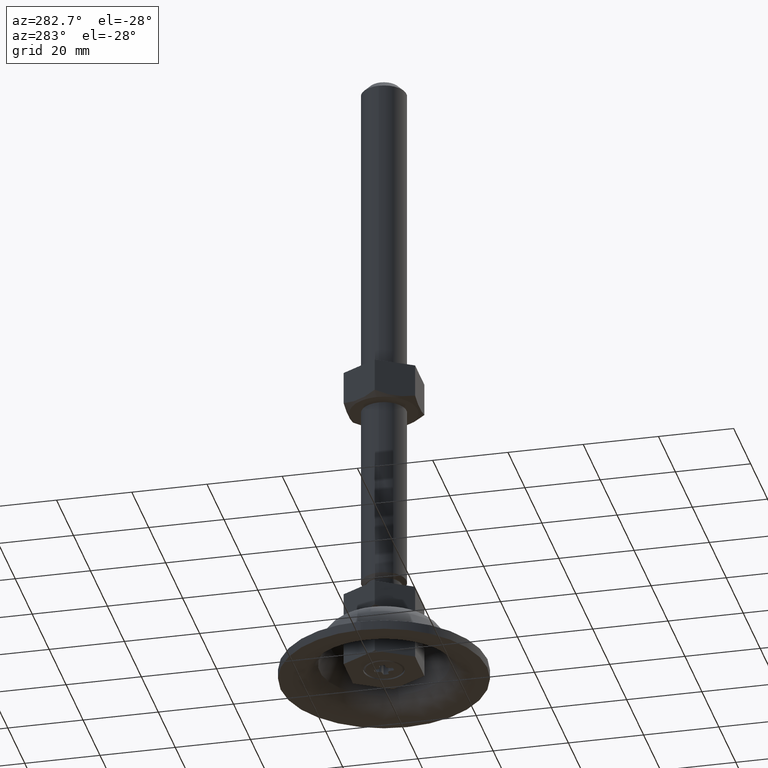
[diagram: clean part render]
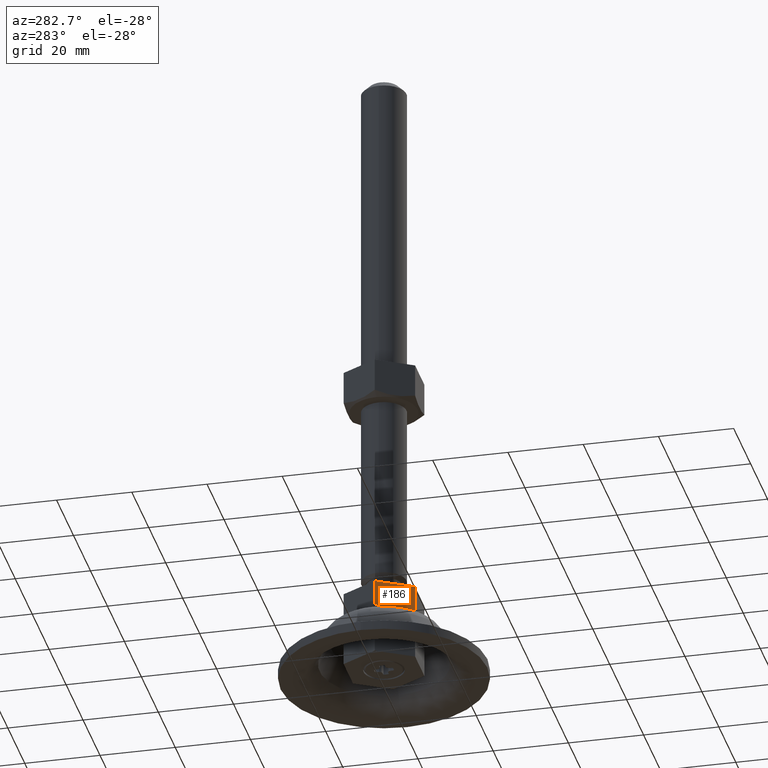
[diagram: same view with one face highlighted and labeled with its STEP entity id]
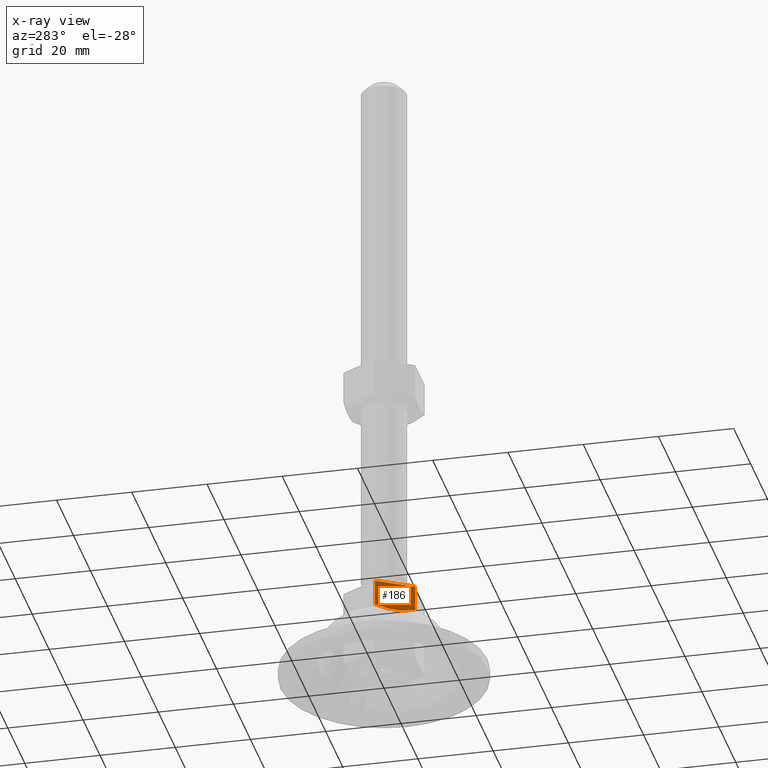
[diagram: x-ray of the same camera — body ghosted, the highlighted face saturated]
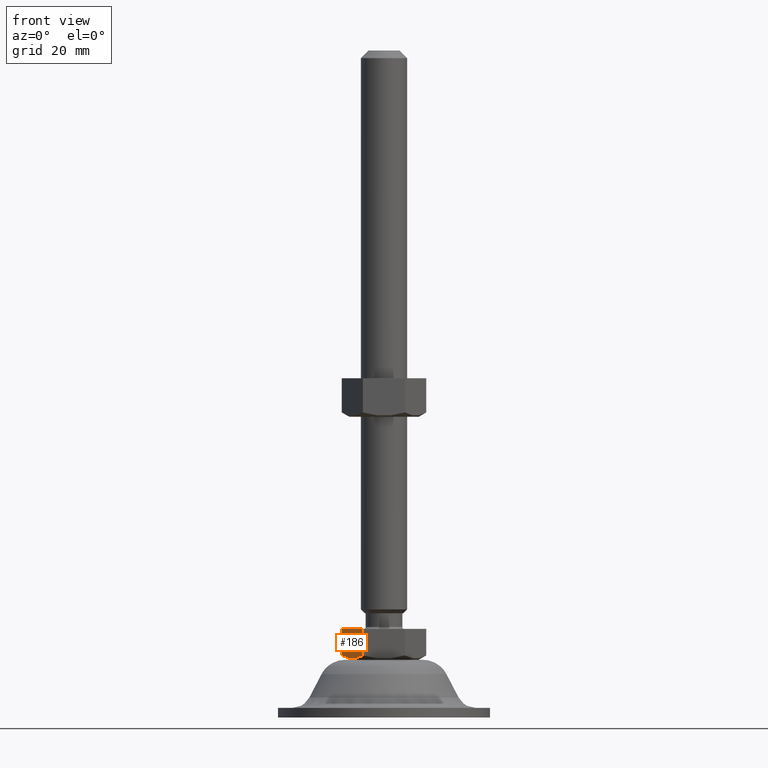
[diagram: same view with one face highlighted and labeled with its STEP entity id]
A machine part, auxiliary view. The second image highlights one B-rep face of the part: STEP entity #186.
The next image is the same camera in x-ray: the body ghosted, the highlighted face saturated — about 0% of this face is hidden behind the body in this view.
A second angle (front view) of the same face is appended — the face is thin or edge-on in the first view.
In plain terms, the highlighted planar face has unit normal (0.866, 0.5, 0).
Its self-contained STEP definition (entity closure, byte-faithful):
#186=ADVANCED_FACE('',(#622),#621,.F.);
#621=PLANE('',#1411);
#622=FACE_OUTER_BOUND('',#1412,.T.);
#1408=CARTESIAN_POINT('',(-4.93634480157E+00,-1.04500000000E+01,-8.48278119672E+00));
#1409=DIRECTION('',(8.66025403784E-01,5.00000000000E-01,0.00000000000E+00));
#1410=DIRECTION('',(-5.00000000000E-01,8.66025403784E-01,0.00000000000E+00));
#1411=AXIS2_PLACEMENT_3D('',#1408,#1409,#1410);
#1412=EDGE_LOOP('',(#2257,#2258,#2259,#2260));
#2257=ORIENTED_EDGE('',*,*,#2621,.F.);
#2258=ORIENTED_EDGE('',*,*,#2622,.T.);
#2259=ORIENTED_EDGE('',*,*,#2618,.T.);
#2260=ORIENTED_EDGE('',*,*,#2517,.T.);
#2517=EDGE_CURVE('',#2784,#2777,#2785,.T.);
#2618=EDGE_CURVE('',#3464,#2784,#3465,.T.);
#2621=EDGE_CURVE('',#3484,#2777,#3485,.T.);
#2622=EDGE_CURVE('',#3484,#3464,#3491,.T.);
#2777=VERTEX_POINT('',#4232);
#2784=VERTEX_POINT('',#4236);
#2785=LINE('',#4237,#4238);
#3464=VERTEX_POINT('',#4695);
#3465=LINE('',#4696,#4697);
#3484=VERTEX_POINT('',#4715);
#3485=LINE('',#4716,#4717);
#3491=(BOUNDED_CURVE() B_SPLINE_CURVE(3,(#4719,#4720,#4721,#4722,#4723,#4724,#4725,#4726,#4727,#4728,#4729,#4730),.UNSPECIFIED.,.F.,.F.) B_SPLINE_CURVE_WITH_KNOTS((4,2,2,2,2,4),(2.38073066898E-07,2.76992422320E-03,5.53961037333E-03,6.92445344839E-03,8.30929652346E-03,1.10789826736E-02),.UNSPECIFIED.) CURVE() GEOMETRIC_REPRESENTATION_ITEM() RATIONAL_B_SPLINE_CURVE((1.00000000000E+00,1.00000000000E+00,1.00000000000E+00,1.00000000000E+00,1.00000000000E+00,1.00000000000E+00,1.00000000000E+00,1.00000000000E+00,1.00000000000E+00,1.00000000000E+00,1.00000000000E+00,1.00000000000E+00)) REPRESENTATION_ITEM('') );
#4232=CARTESIAN_POINT('',(-1.09696551146E+01,5.68434188608E-14,-3.65685370873E-07));
#4236=CARTESIAN_POINT('',(-5.48482755730E+00,-9.50000000000E+00,-3.65685370873E-07));
#4237=CARTESIAN_POINT('',(-5.48482755730E+00,-9.50000000000E+00,-3.65685370873E-07));
#4238=VECTOR('',#4239,1.09696551146E+01);
#4239=DIRECTION('',(-5.00000000000E-01,8.66025403784E-01,0.00000000000E+00));
#4695=CARTESIAN_POINT('',(-5.48482755730E+00,-9.50000000000E+00,-6.86281997044E+00));
#4696=CARTESIAN_POINT('',(-5.48482755730E+00,-9.50000000000E+00,-6.86281997044E+00));
#4697=VECTOR('',#4698,6.86281960476E+00);
#4698=DIRECTION('',(0.00000000000E+00,0.00000000000E+00,1.00000000000E+00));
#4715=CARTESIAN_POINT('',(-1.09696551146E+01,5.68434188608E-14,-6.86281997045E+00));
#4716=CARTESIAN_POINT('',(-1.09696551146E+01,5.68434188608E-14,-6.86281997045E+00));
#4717=VECTOR('',#4718,6.86281960476E+00);
#4718=DIRECTION('',(0.00000000000E+00,0.00000000000E+00,1.00000000000E+00));
#4719=CARTESIAN_POINT('',(-1.09696551146E+01,1.01749990780E-13,-6.86281997045E+00));
#4720=CARTESIAN_POINT('',(-1.05218710035E+01,-7.75584831292E-01,-7.12134820774E+00));
#4721=CARTESIAN_POINT('',(-1.00708221796E+01,-1.55682431095E+00,-7.33442232213E+00));
#4722=CARTESIAN_POINT('',(-9.15931759723E+00,-3.13559655893E+00,-7.62959916283E+00));
#4723=CARTESIAN_POINT('',(-8.69879190613E+00,-3.93325045411E+00,-7.71072822740E+00));
#4724=CARTESIAN_POINT('',(-7.99932680712E+00,-5.14475954372E+00,-7.71161930299E+00));
#4725=CARTESIAN_POINT('',(-7.76507467708E+00,-5.55049613473E+00,-7.69178638946E+00));
#4726=CARTESIAN_POINT('',(-7.30169925877E+00,-6.35308590223E+00,-7.61444850127E+00));
#4727=CARTESIAN_POINT('',(-7.07156507453E+00,-6.75169000189E+00,-7.55702201321E+00));
#4728=CARTESIAN_POINT('',(-6.38525974474E+00,-7.94040570258E+00,-7.33527193007E+00));
#4729=CARTESIAN_POINT('',(-5.93316985731E+00,-8.72344835720E+00,-7.12167047819E+00));
#4730=CARTESIAN_POINT('',(-5.48482755730E+00,-9.50000000000E+00,-6.86281997044E+00));